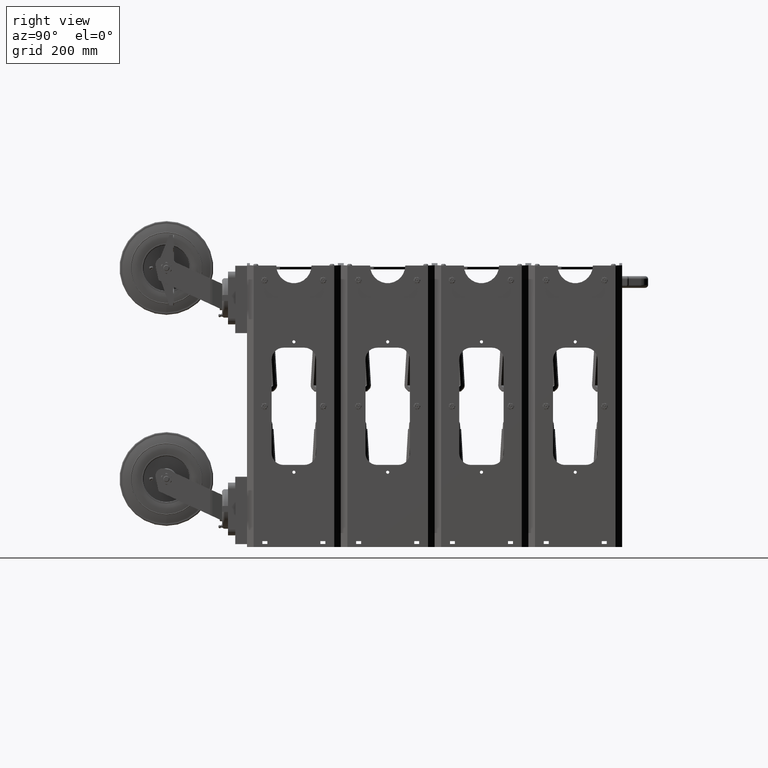
[diagram: clean part render]
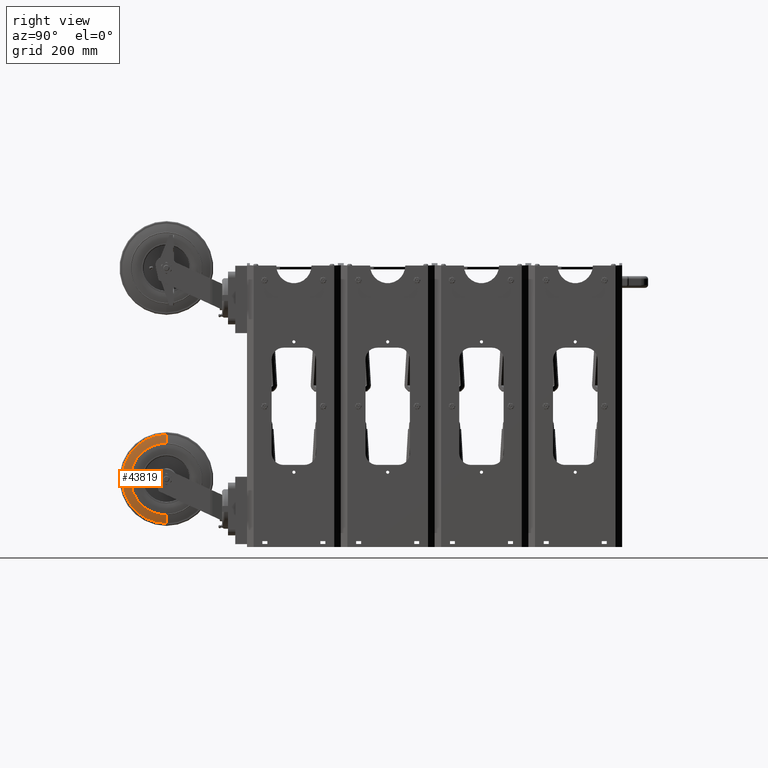
[diagram: same view with one face highlighted and labeled with its STEP entity id]
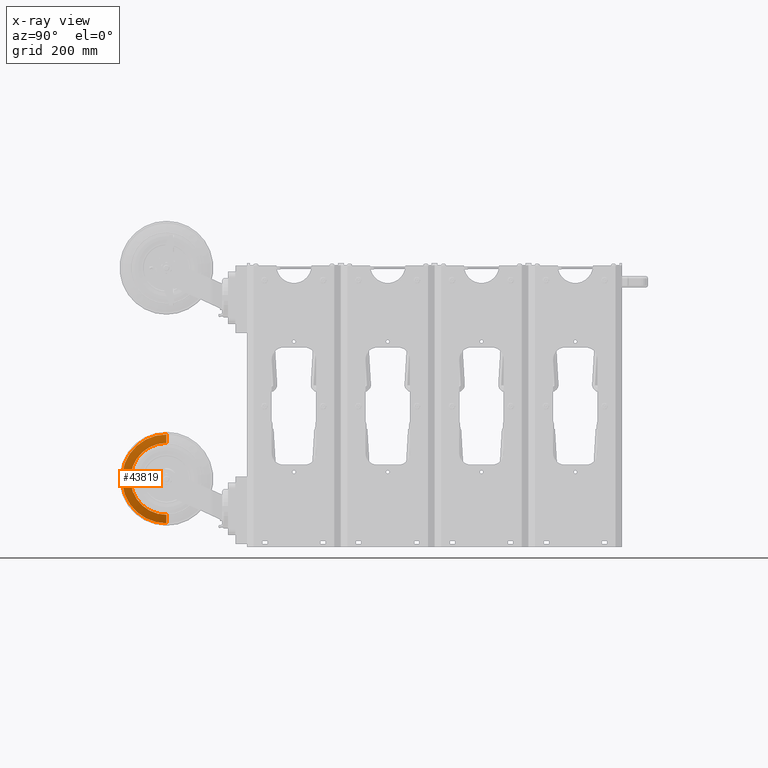
[diagram: x-ray of the same camera — body ghosted, the highlighted face saturated]
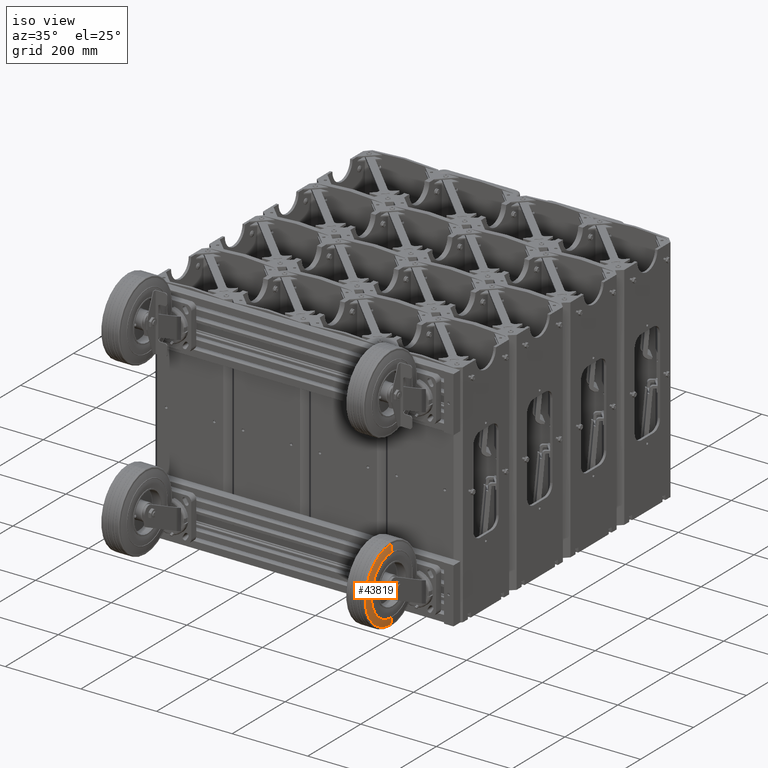
[diagram: same view with one face highlighted and labeled with its STEP entity id]
A machine part, right view. The second image highlights one B-rep face of the part: STEP entity #43819.
The next image is the same camera in x-ray: the body ghosted, the highlighted face saturated — about 0% of this face is hidden behind the body in this view.
A second angle (iso view) of the same face is appended — the face is thin or edge-on in the first view.
In plain terms, the highlighted toroidal blend (fillet) surface has major radius 48.0089 mm and minor (blend) radius 203.2 mm.
Its self-contained STEP definition (entity closure, byte-faithful):
#1700 = AXIS2_PLACEMENT_3D ( 'NONE', #6031, #6044, #6045 ) ;
#1702 = AXIS2_PLACEMENT_3D ( 'NONE', #6043, #6050, #6051 ) ;
#2216 = AXIS2_PLACEMENT_3D ( 'NONE', #13907, #13911, #13916 ) ;
#5704 = CIRCLE ( 'NONE', #1700, 8.000000000003385700 ) ;
#5707 = CIRCLE ( 'NONE', #1702, 8.000000000003385700 ) ;
#6031 = CARTESIAN_POINT ( 'NONE',  ( 4.452614064769894000, -5.249999999999999100, 6.833628195641386700 ) ) ;
#6043 = CARTESIAN_POINT ( 'NONE',  ( 0.6723859352301060400, -5.249999999999999100, 6.833628195641386700 ) ) ;
#6044 = DIRECTION ( 'NONE',  ( -1.224646799147352500E-016, 1.000000000000000000, -2.770154093959199800E-032 ) ) ;
#6045 = DIRECTION ( 'NONE',  ( -1.000000000000000000, -1.365923996831553500E-016, 0.0000000000000000000 ) ) ;
#6050 = DIRECTION ( 'NONE',  ( -4.930380657631323800E-032, -1.000000000000000000, 2.770154093959199800E-032 ) ) ;
#6051 = DIRECTION ( 'NONE',  ( 1.000000000000000000, 0.0000000000000000000, 0.0000000000000000000 ) ) ;
#8000 = FACE_OUTER_BOUND ( 'NONE', #32241, .T. ) ;
#8002 = TOROIDAL_SURFACE ( 'NONE', #2216, 1.890114064769893700, 8.000000000003385700 ) ;
#12331 = CARTESIAN_POINT ( 'NONE',  ( -1.227500000000612900, -5.249999999999999100, -0.9375000000047655200 ) ) ;
#12333 = CARTESIAN_POINT ( 'NONE',  ( 6.352500000000612900, -5.249999999999999100, -0.9375000000047655200 ) ) ;
#12335 = CARTESIAN_POINT ( 'NONE',  ( 5.625000000004121100, -5.249999999999996400, -1.080000000004340800 ) ) ;
#12336 = CARTESIAN_POINT ( 'NONE',  ( -0.5000000000041222600, -5.249999999999996400, -1.080000000004340800 ) ) ;
#13907 = CARTESIAN_POINT ( 'NONE',  ( 2.562500000000000000, -5.249999999999999100, 6.833628195641386700 ) ) ;
#13911 = DIRECTION ( 'NONE',  ( 0.0000000000000000000, -2.770154093959199800E-032, -1.000000000000000000 ) ) ;
#13916 = DIRECTION ( 'NONE',  ( -1.000000000000000000, 0.0000000000000000000, 0.0000000000000000000 ) ) ;
#21824 = EDGE_CURVE ( 'NONE', #38771, #38772, #30963, .T. ) ;
#21828 = EDGE_CURVE ( 'NONE', #38770, #38769, #30968, .T. ) ;
#27777 = AXIS2_PLACEMENT_3D ( 'NONE', #29335, #29337, #29339 ) ;
#27783 = AXIS2_PLACEMENT_3D ( 'NONE', #29348, #29362, #29364 ) ;
#29335 = CARTESIAN_POINT ( 'NONE',  ( 2.562500000000000000, -5.249999999999996400, -1.080000000004340800 ) ) ;
#29337 = DIRECTION ( 'NONE',  ( 0.0000000000000000000, -2.770154093959199800E-032, -1.000000000000000000 ) ) ;
#29339 = DIRECTION ( 'NONE',  ( -1.000000000000000000, 0.0000000000000000000, 0.0000000000000000000 ) ) ;
#29348 = CARTESIAN_POINT ( 'NONE',  ( 2.562500000000000000, -5.249999999999996400, -0.9375000000047649700 ) ) ;
#29362 = DIRECTION ( 'NONE',  ( 0.0000000000000000000, -2.770154093959199800E-032, -1.000000000000000000 ) ) ;
#29364 = DIRECTION ( 'NONE',  ( -1.000000000000000000, 0.0000000000000000000, 0.0000000000000000000 ) ) ;
#30963 = CIRCLE ( 'NONE', #27777, 3.062500000004122500 ) ;
#30968 = CIRCLE ( 'NONE', #27783, 3.790000000000613800 ) ;
#32241 = EDGE_LOOP ( 'NONE', ( #41579, #41580, #41581, #41582 ) ) ;
#35499 = EDGE_CURVE ( 'NONE', #38770, #38771, #5704, .T. ) ;
#35501 = EDGE_CURVE ( 'NONE', #38769, #38772, #5707, .T. ) ;
#38769 = VERTEX_POINT ( 'NONE', #12331 ) ;
#38770 = VERTEX_POINT ( 'NONE', #12333 ) ;
#38771 = VERTEX_POINT ( 'NONE', #12335 ) ;
#38772 = VERTEX_POINT ( 'NONE', #12336 ) ;
#41579 = ORIENTED_EDGE ( 'NONE', *, *, #35499, .F. ) ;
#41580 = ORIENTED_EDGE ( 'NONE', *, *, #21828, .T. ) ;
#41581 = ORIENTED_EDGE ( 'NONE', *, *, #35501, .T. ) ;
#41582 = ORIENTED_EDGE ( 'NONE', *, *, #21824, .F. ) ;
#43819 = ADVANCED_FACE ( 'NONE', ( #8000 ), #8002, .T. ) ;